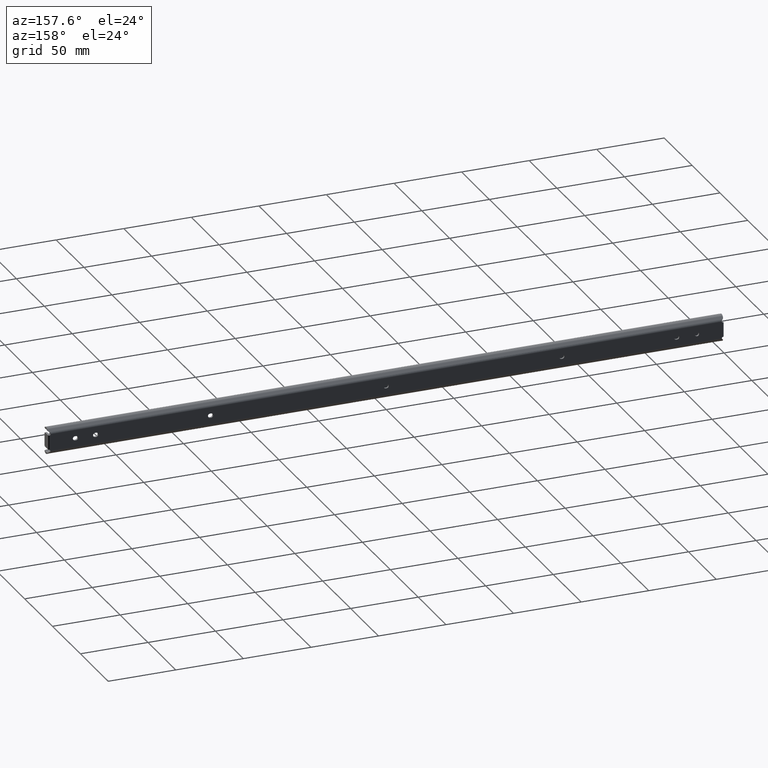
[diagram: clean part render]
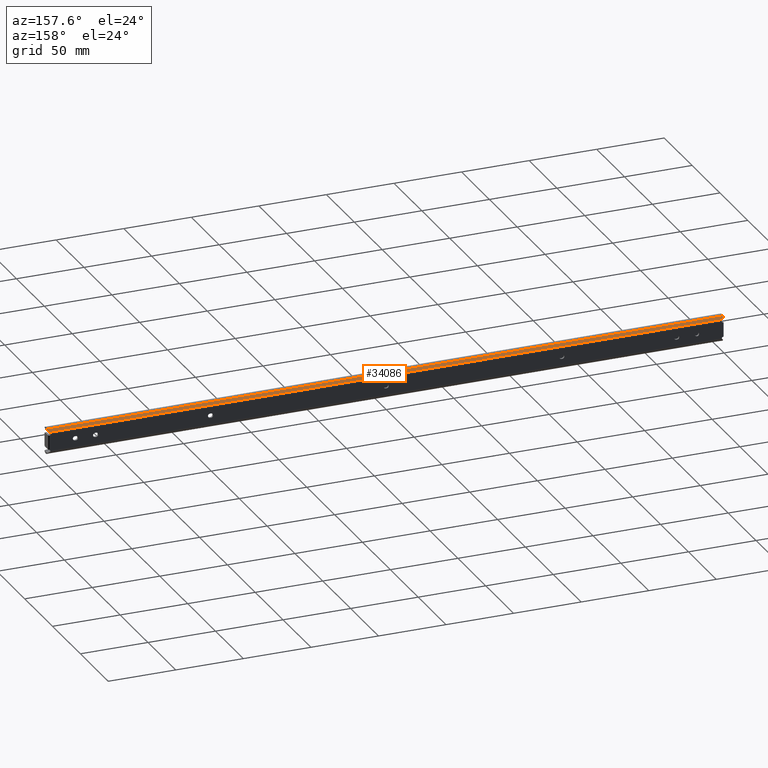
[diagram: same view with one face highlighted and labeled with its STEP entity id]
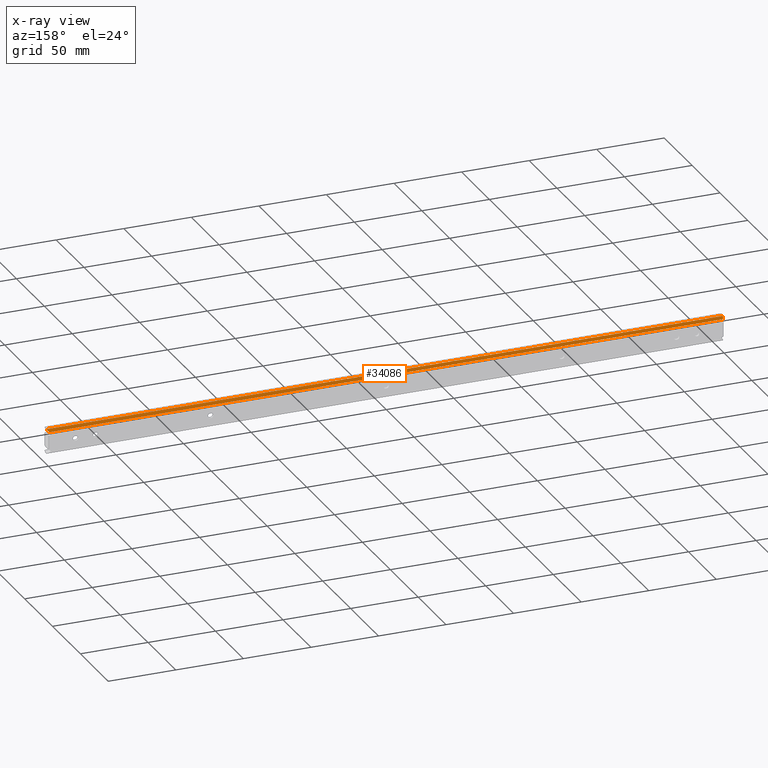
[diagram: x-ray of the same camera — body ghosted, the highlighted face saturated]
A machine part, auxiliary view. The second image highlights one B-rep face of the part: STEP entity #34086.
The next image is the same camera in x-ray: the body ghosted, the highlighted face saturated — about 0% of this face is hidden behind the body in this view.
In plain terms, the highlighted face is a freeform B-spline surface patch.
Its self-contained STEP definition (entity closure, byte-faithful):
#32056=CARTESIAN_POINT('',(499.707106890593020,-1.196151636337310,8.021320109406789));
#32057=VERTEX_POINT('',#32056);
#32079=CARTESIAN_POINT('',(499.159981460541990,-0.607033000000000,7.474195000000000));
#32080=VERTEX_POINT('',#32079);
#32094=CARTESIAN_POINT('',(499.707106890593020,-1.196151636337310,8.021320109406789));
#32095=CARTESIAN_POINT('',(499.159981460541990,-0.607033000000000,7.474195000000000));
#32096=QUASI_UNIFORM_CURVE('',1,(#32094,#32095),.UNSPECIFIED.,.F.,.U.);
#32097=EDGE_CURVE('',#32057,#32080,#32096,.T.);
#32174=CARTESIAN_POINT('',(500.0,-1.957531415335170,8.728427000000000));
#32175=VERTEX_POINT('',#32174);
#32176=CARTESIAN_POINT('',(500.0,-1.957531415335170,8.728427000000000));
#32177=CARTESIAN_POINT('',(500.0,-1.511525702522513,8.314213528262183));
#32178=CARTESIAN_POINT('',(499.707106890593020,-1.196151636337310,8.021320109406789));
#32186=(BOUNDED_CURVE()B_SPLINE_CURVE(2,(#32176,#32177,#32178),.UNSPECIFIED.,.F.,.U.)CURVE()GEOMETRIC_REPRESENTATION_ITEM()QUASI_UNIFORM_CURVE()RATIONAL_B_SPLINE_CURVE((1.0,0.923879562116460,1.0))REPRESENTATION_ITEM(''));
#32187=EDGE_CURVE('',#32175,#32057,#32186,.T.);
#33012=CARTESIAN_POINT('',(0.840018539457477,-0.607033000000000,7.474195000000000));
#33013=VERTEX_POINT('',#33012);
#33043=CARTESIAN_POINT('',(0.292893109406706,-1.196151636336962,8.021320109406590));
#33044=VERTEX_POINT('',#33043);
#33050=CARTESIAN_POINT('',(0.840018539457477,-0.607033000000000,7.474195000000000));
#33051=CARTESIAN_POINT('',(0.292893109406706,-1.196151636336962,8.021320109406590));
#33052=QUASI_UNIFORM_CURVE('',1,(#33050,#33051),.UNSPECIFIED.,.F.,.U.);
#33053=EDGE_CURVE('',#33013,#33044,#33052,.T.);
#33083=CARTESIAN_POINT('',(0.0,-1.957531415335170,8.728427000000000));
#33084=VERTEX_POINT('',#33083);
#33090=CARTESIAN_POINT('',(0.292893109406706,-1.196151636336962,8.021320109406590));
#33091=CARTESIAN_POINT('',(0.0,-1.511525454940575,8.314213298328415));
#33092=CARTESIAN_POINT('',(0.0,-1.957531415335170,8.728427000000000));
#33100=(BOUNDED_CURVE()B_SPLINE_CURVE(2,(#33090,#33091,#33092),.UNSPECIFIED.,.F.,.U.)CURVE()GEOMETRIC_REPRESENTATION_ITEM()QUASI_UNIFORM_CURVE()RATIONAL_B_SPLINE_CURVE((1.0,0.923879487010724,1.0))REPRESENTATION_ITEM(''));
#33101=EDGE_CURVE('',#33044,#33084,#33100,.T.);
#33796=CARTESIAN_POINT('',(0.0,-2.466980046918005,9.201560556579020));
#33797=VERTEX_POINT('',#33796);
#33813=CARTESIAN_POINT('',(0.0,-2.466980046918005,9.201560556579020));
#33814=CARTESIAN_POINT('',(0.0,-1.957531415335170,8.728427000000000));
#33815=QUASI_UNIFORM_CURVE('',1,(#33813,#33814),.UNSPECIFIED.,.F.,.U.);
#33816=EDGE_CURVE('',#33797,#33084,#33815,.T.);
#33902=CARTESIAN_POINT('',(500.0,-2.466980046918005,9.201560556579020));
#33903=VERTEX_POINT('',#33902);
#33920=CARTESIAN_POINT('',(500.0,-2.466980046918005,9.201560556579020));
#33921=CARTESIAN_POINT('',(500.0,-1.957531415335170,8.728427000000000));
#33922=QUASI_UNIFORM_CURVE('',1,(#33920,#33921),.UNSPECIFIED.,.F.,.U.);
#33923=EDGE_CURVE('',#33903,#32175,#33922,.T.);
#34059=CARTESIAN_POINT('',(499.159981460541990,-0.607033000000000,7.474195000000000));
#34060=CARTESIAN_POINT('',(0.840018539457477,-0.607033000000000,7.474195000000000));
#34061=QUASI_UNIFORM_CURVE('',1,(#34059,#34060),.UNSPECIFIED.,.F.,.U.);
#34062=EDGE_CURVE('',#32080,#33013,#34061,.T.);
#34067=CARTESIAN_POINT('',(-24.974999030902929,-0.514128654095806,7.387913074565048));
#34068=CARTESIAN_POINT('',(-24.974999030902929,-2.559884332910539,9.287842913367683));
#34069=CARTESIAN_POINT('',(524.975012441948140,-0.514128654095806,7.387913074565048));
#34070=CARTESIAN_POINT('',(524.975012441948140,-2.559884332910539,9.287842913367683));
#34071=B_SPLINE_SURFACE_WITH_KNOTS('',1,1,((#34067,#34069),(#34068,#34070)),.UNSPECIFIED.,.F.,.F.,.U.,(2,2),(2,2),(0.0,2.791925803056976),(0.0,549.950011472851090),.UNSPECIFIED.);
#34072=ORIENTED_EDGE('',*,*,#33923,.T.);
#34073=ORIENTED_EDGE('',*,*,#32187,.T.);
#34074=ORIENTED_EDGE('',*,*,#32097,.T.);
#34075=ORIENTED_EDGE('',*,*,#34062,.T.);
#34076=ORIENTED_EDGE('',*,*,#33053,.T.);
#34077=ORIENTED_EDGE('',*,*,#33101,.T.);
#34078=ORIENTED_EDGE('',*,*,#33816,.F.);
#34079=CARTESIAN_POINT('',(500.0,-2.466980046918005,9.201560556579020));
#34080=CARTESIAN_POINT('',(0.0,-2.466980046918005,9.201560556579020));
#34081=QUASI_UNIFORM_CURVE('',1,(#34079,#34080),.UNSPECIFIED.,.F.,.U.);
#34082=EDGE_CURVE('',#33903,#33797,#34081,.T.);
#34083=ORIENTED_EDGE('',*,*,#34082,.F.);
#34084=EDGE_LOOP('',(#34072,#34073,#34074,#34075,#34076,#34077,#34078,#34083));
#34085=FACE_OUTER_BOUND('',#34084,.T.);
#34086=ADVANCED_FACE('',(#34085),#34071,.T.);